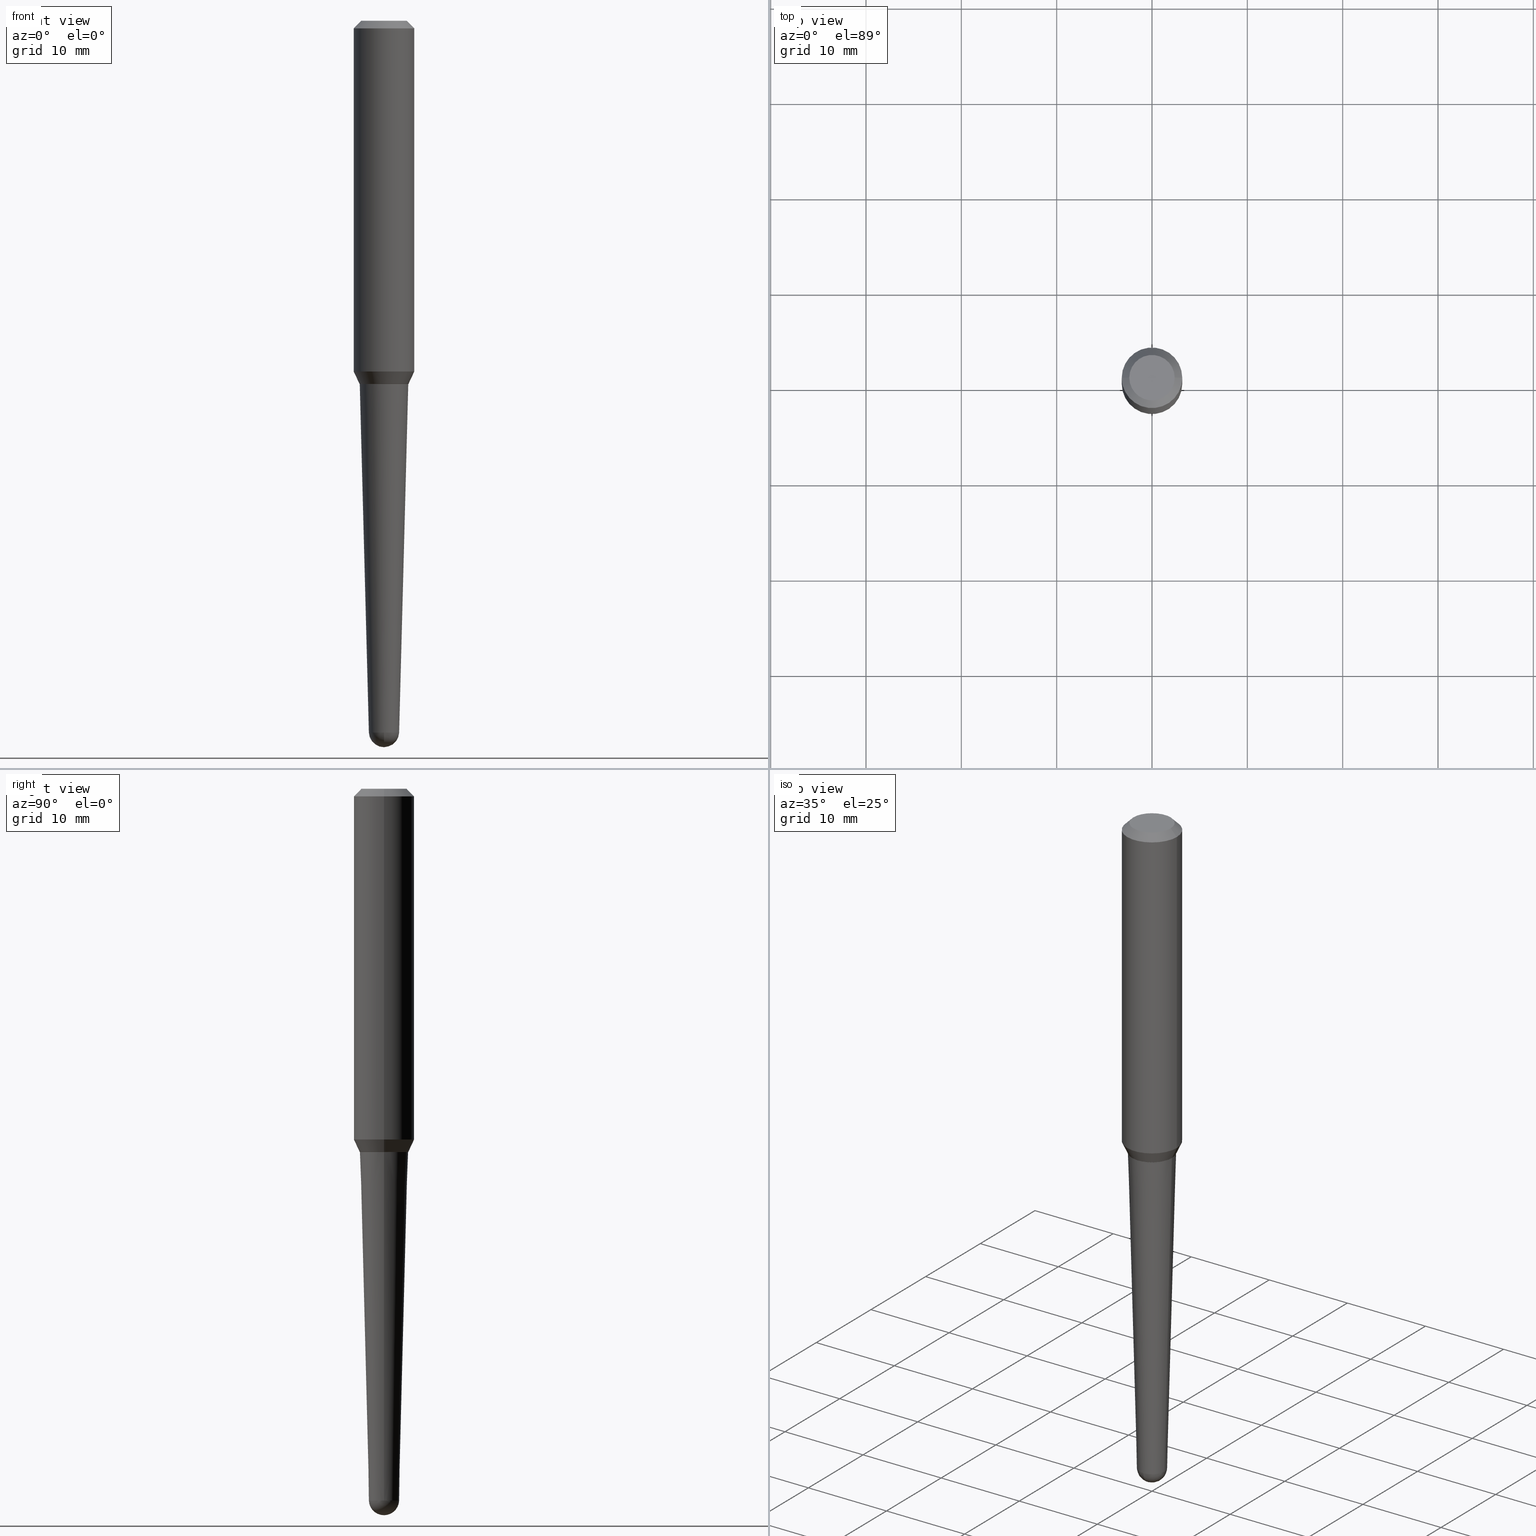
[diagram: canonical four-view strip — front | top / right | iso, engineering-drawing reading convention]
A machine part, canonical four-view strip (front | top / right | iso — engineering-drawing reading convention). The complete STEP part file that produces these views, byte-faithful:
ISO-10303-21;
HEADER;
FILE_DESCRIPTION (( 'STEP AP203' ),
    '1' );
FILE_NAME ('32471.STEP',
    '2024-03-04T15:25:41',
    ( '' ),
    ( '' ),
    'SwSTEP 2.0',
    'SolidWorks 2023',
    '' );
FILE_SCHEMA (( 'CONFIG_CONTROL_DESIGN' ));
ENDSEC;

DATA;
#1 = ORIENTED_EDGE ( 'NONE', *, *, #314, .F. ) ;
#2 = DIRECTION ( 'NONE',  ( -1.000000000000000000, 6.982962677686265922E-15, -4.883557194083112340E-29 ) ) ;
#3 = EDGE_CURVE ( 'NONE', #26, #160, #276, .T. ) ;
#4 = VECTOR ( 'NONE', #8, 39.37007874015748143 ) ;
#5 = CARTESIAN_POINT ( 'NONE',  ( 3.666980474874612654E-29, -5.235476267595295884E-15, -1.499500000000000055 ) ) ;
#6 = ORIENTED_EDGE ( 'NONE', *, *, #387, .T. ) ;
#7 = DIRECTION ( 'NONE',  ( 1.000000000000000000, -6.982962677686266711E-15, 4.852736867747361723E-29 ) ) ;
#8 = DIRECTION ( 'NONE',  ( 0.7071067811864750752, -2.468850131081498176E-15, 0.7071067811866199593 ) ) ;
#9 = DIRECTION ( 'NONE',  ( 1.000000000000000000, -6.982962677686277755E-15, 0.000000000000000000 ) ) ;
#10 = ADVANCED_BREP_SHAPE_REPRESENTATION ( '32471', ( #323, #168, #287 ), #134 ) ;
#11 = EDGE_CURVE ( 'NONE', #128, #308, #189, .T. ) ;
#12 = CARTESIAN_POINT ( 'NONE',  ( 0.1011636867863856259, -5.941898516761770205E-15, -1.499500000000000055 ) ) ;
#13 = ORIENTED_EDGE ( 'NONE', *, *, #101, .F. ) ;
#14 = AXIS2_PLACEMENT_3D ( 'NONE', #288, #2, #326 ) ;
#15 = CARTESIAN_POINT ( 'NONE',  ( -0.06247858281097278671, -9.818001671690315419E-15, -2.939136059269242374 ) ) ;
#16 = VERTEX_POINT ( 'NONE', #432 ) ;
#17 = CARTESIAN_POINT ( 'NONE',  ( 3.668203209277704335E-29, -5.237222008264717388E-15, -1.499999999999999778 ) ) ;
#18 = EDGE_LOOP ( 'NONE', ( #290, #233, #330, #157 ) ) ;
#19 = ADVANCED_FACE ( 'NONE', ( #241 ), #325, .T. ) ;
#20 = CARTESIAN_POINT ( 'NONE',  ( 7.187565550076840817E-29, -1.026193870325954003E-14, -2.939136059269242374 ) ) ;
#21 = ORIENTED_EDGE ( 'NONE', *, *, #145, .T. ) ;
#22 = EDGE_CURVE ( 'NONE', #416, #427, #38, .T. ) ;
#23 =( NAMED_UNIT ( * ) PLANE_ANGLE_UNIT ( ) SI_UNIT ( $, .RADIAN. ) );
#24 = ORIENTED_EDGE ( 'NONE', *, *, #267, .F. ) ;
#25 = LENGTH_MEASURE_WITH_UNIT ( LENGTH_MEASURE( 0.02539999999999999897 ), #125 );
#26 = VERTEX_POINT ( 'NONE', #319 ) ;
#27 = DIMENSIONAL_EXPONENTS ( 1.000000000000000000, 0.000000000000000000, 0.000000000000000000, 0.000000000000000000, 0.000000000000000000, 0.000000000000000000, 0.000000000000000000 ) ;
#28 = AXIS2_PLACEMENT_3D ( 'NONE', #116, #363, #9 ) ;
#29 = CC_DESIGN_APPROVAL ( #414, ( #351 ) ) ;
#30 = CALENDAR_DATE ( 2024, 4, 3 ) ;
#31 = ADVANCED_FACE ( 'NONE', ( #209 ), #70, .T. ) ;
#32 = CARTESIAN_POINT ( 'NONE',  ( 0.1250000000000001665, -5.929872066628403637E-15, -1.448382861353968432 ) ) ;
#33 = ADVANCED_FACE ( 'NONE', ( #174 ), #172, .T. ) ;
#34 = CARTESIAN_POINT ( 'NONE',  ( 3.666980474874612654E-29, -5.235476267595295884E-15, -1.499500000000000055 ) ) ;
#35 = CIRCLE ( 'NONE', #52, 0.1250000000000001665 ) ;
#36 = LOCAL_TIME ( 10, 25, 41.00000000000000000, #106 ) ;
#37 = COORDINATED_UNIVERSAL_TIME_OFFSET ( 5, 0, .BEHIND. ) ;
#38 = LINE ( 'NONE', #76, #114 ) ;
#39 = PRODUCT_DEFINITION ( 'UNKNOWN', '', #351, #249 ) ;
#40 = DATE_AND_TIME ( #30, #150 ) ;
#41 = DIRECTION ( 'NONE',  ( -1.000000000000000000, 6.982962677686265922E-15, -4.876176775795935793E-29 ) ) ;
#42 = ORIENTED_EDGE ( 'NONE', *, *, #266, .T. ) ;
#43 = ADVANCED_FACE ( 'NONE', ( #207 ), #402, .T. ) ;
#44 = CARTESIAN_POINT ( 'NONE',  ( 3.666980474874612654E-29, -5.235476267595295884E-15, -1.499500000000000055 ) ) ;
#45 = ORIENTED_EDGE ( 'NONE', *, *, #461, .F. ) ;
#46 = DIRECTION ( 'NONE',  ( -2.445468806185136877E-29, 3.491481338843145188E-15, 1.000000000000000000 ) ) ;
#47 = CONICAL_SURFACE ( 'NONE', #182, 0.1250000000000000278, 0.7853981633974514986 ) ;
#48 = DIRECTION ( 'NONE',  ( -2.445468806185136597E-29, 3.491481338843145583E-15, 1.000000000000000000 ) ) ;
#49 = ORIENTED_EDGE ( 'NONE', *, *, #300, .T. ) ;
#50 = DIRECTION ( 'NONE',  ( -2.445468806185136597E-29, 3.491481338843145583E-15, 1.000000000000000000 ) ) ;
#51 = CARTESIAN_POINT ( 'NONE',  ( 0.1006636867863858198, -5.940152776092349491E-15, -1.499999999999999778 ) ) ;
#52 = AXIS2_PLACEMENT_3D ( 'NONE', #186, #50, #221 ) ;
#53 = CARTESIAN_POINT ( 'NONE',  ( -0.1011636867863856259, -4.516665039907533070E-15, -1.499500000000000055 ) ) ;
#54 = ORIENTED_EDGE ( 'NONE', *, *, #303, .T. ) ;
#55 = AXIS2_PLACEMENT_3D ( 'NONE', #404, #446, #122 ) ;
#56 = CARTESIAN_POINT ( 'NONE',  ( 7.642090019328562375E-31, -1.091087918388484597E-16, -0.03125000000000004857 ) ) ;
#57 = ORIENTED_EDGE ( 'NONE', *, *, #369, .F. ) ;
#58 = PERSON_AND_ORGANIZATION ( #97, #318 ) ;
#59 = ORIENTED_EDGE ( 'NONE', *, *, #314, .T. ) ;
#60 = FACE_OUTER_BOUND ( 'NONE', #253, .T. ) ;
#61 = VERTEX_POINT ( 'NONE', #137 ) ;
#62 = AXIS2_PLACEMENT_3D ( 'NONE', #393, #78, #144 ) ;
#63 = ORIENTED_EDGE ( 'NONE', *, *, #202, .T. ) ;
#64 = ADVANCED_FACE ( 'NONE', ( #283 ), #380, .T. ) ;
#65 = DIRECTION ( 'NONE',  ( -2.445468806185136597E-29, 3.491481338843145583E-15, 1.000000000000000000 ) ) ;
#66 = VECTOR ( 'NONE', #250, 39.37007874015748854 ) ;
#67 = PERSON_AND_ORGANIZATION ( #97, #318 ) ;
#68 = CARTESIAN_POINT ( 'NONE',  ( 7.187565550076840817E-29, -1.026193870325954003E-14, -2.939136059269242374 ) ) ;
#69 = SECURITY_CLASSIFICATION_LEVEL ( 'unclassified' ) ;
#70 = CYLINDRICAL_SURFACE ( 'NONE', #219, 0.1250000000000001110 ) ;
#71 = DIRECTION ( 'NONE',  ( 2.445468806185136597E-29, -3.491481338843145583E-15, -1.000000000000000000 ) ) ;
#72 = AXIS2_PLACEMENT_3D ( 'NONE', #423, #382, #41 ) ;
#73 = CONICAL_SURFACE ( 'NONE', #381, 0.06247858281097278671, 0.02617993877991489637 ) ;
#74 = CALENDAR_DATE ( 2024, 4, 3 ) ;
#75 = EDGE_CURVE ( 'NONE', #165, #226, #278, .T. ) ;
#76 = CARTESIAN_POINT ( 'NONE',  ( -0.1250000000000001110, 8.881784197001279934E-16, 5.931196827434234637E-16 ) ) ;
#77 = ADVANCED_FACE ( 'NONE', ( #139 ), #322, .T. ) ;
#78 = DIRECTION ( 'NONE',  ( 2.438088387897960049E-29, -3.491481338843145188E-15, -1.000000000000000000 ) ) ;
#79 = CARTESIAN_POINT ( 'NONE',  ( -1.450455682483482035E-44, 2.070866303999251778E-30, 5.931196827434296760E-16 ) ) ;
#80 = ORIENTED_EDGE ( 'NONE', *, *, #185, .T. ) ;
#81 = CIRCLE ( 'NONE', #452, 0.06249999999999984041 ) ;
#82 = VECTOR ( 'NONE', #374, 39.37007874015748143 ) ;
#83 = DIRECTION ( 'NONE',  ( 1.000000000000000000, -6.982962677686277755E-15, 0.000000000000000000 ) ) ;
#84 = CARTESIAN_POINT ( 'NONE',  ( 3.666980474874612654E-29, -5.235476267595295884E-15, -1.499500000000000055 ) ) ;
#85 = DIRECTION ( 'NONE',  ( -2.445468806185136597E-29, 3.491481338843145583E-15, 1.000000000000000000 ) ) ;
#86 = CIRCLE ( 'NONE', #345, 0.09374999999999956979 ) ;
#87 = FACE_OUTER_BOUND ( 'NONE', #355, .T. ) ;
#88 = ORIENTED_EDGE ( 'NONE', *, *, #365, .T. ) ;
#89 = EDGE_CURVE ( 'NONE', #119, #165, #81, .T. ) ;
#90 = VERTEX_POINT ( 'NONE', #32 ) ;
#91 = DIRECTION ( 'NONE',  ( 6.982962677686265922E-15, 1.000000000000000000, 0.000000000000000000 ) ) ;
#92 = ORIENTED_EDGE ( 'NONE', *, *, #117, .F. ) ;
#93 = FACE_OUTER_BOUND ( 'NONE', #132, .T. ) ;
#94 = EDGE_LOOP ( 'NONE', ( #21, #54, #184, #441 ) ) ;
#95 = AXIS2_PLACEMENT_3D ( 'NONE', #84, #85, #148 ) ;
#96 = APPROVAL_PERSON_ORGANIZATION ( #109, #275, #347 ) ;
#97 = PERSON ( 'UNSPECIFIED', 'UNSPECIFIED', 'UNSPECIFIED', ('UNSPECIFIED'), ('UNSPECIFIED'), ('UNSPECIFIED') ) ;
#98 = DATE_AND_TIME ( #74, #224 ) ;
#99 = ORIENTED_EDGE ( 'NONE', *, *, #3, .T. ) ;
#100 = APPROVAL_STATUS ( 'not_yet_approved' ) ;
#101 = EDGE_CURVE ( 'NONE', #90, #61, #176, .T. ) ;
#102 = DIRECTION ( 'NONE',  ( -2.445468806185136597E-29, 3.491481338843145583E-15, 1.000000000000000000 ) ) ;
#103 = APPLICATION_PROTOCOL_DEFINITION ( 'international standard', 'config_control_design', 1994, #218 ) ;
#104 = APPROVAL ( #244, 'UNSPECIFIED' ) ;
#105 = DIRECTION ( 'NONE',  ( 1.000000000000000000, -6.982962677686277755E-15, 0.000000000000000000 ) ) ;
#106 = COORDINATED_UNIVERSAL_TIME_OFFSET ( 5, 0, .BEHIND. ) ;
#107 = CIRCLE ( 'NONE', #28, 0.06247858281097278671 ) ;
#108 = DIRECTION ( 'NONE',  ( -2.445468806185136597E-29, 3.491481338843145583E-15, 1.000000000000000000 ) ) ;
#109 = PERSON_AND_ORGANIZATION ( #97, #318 ) ;
#110 = DIRECTION ( 'NONE',  ( 1.000000000000000000, -6.982962677686265133E-15, 0.000000000000000000 ) ) ;
#111 = LINE ( 'NONE', #222, #411 ) ;
#112 = LINE ( 'NONE', #12, #286 ) ;
#113 = EDGE_LOOP ( 'NONE', ( #152, #59, #359, #123, #228 ) ) ;
#114 = VECTOR ( 'NONE', #216, 39.37007874015748143 ) ;
#115 = APPROVAL_PERSON_ORGANIZATION ( #170, #414, #175 ) ;
#116 = CARTESIAN_POINT ( 'NONE',  ( 7.187565550076840817E-29, -1.026193870325954003E-14, -2.939136059269242374 ) ) ;
#117 = EDGE_CURVE ( 'NONE', #337, #160, #197, .T. ) ;
#118 = DIRECTION ( 'NONE',  ( 2.445468806185136597E-29, -3.491481338843145583E-15, -1.000000000000000000 ) ) ;
#119 = VERTEX_POINT ( 'NONE', #456 ) ;
#120 = DIRECTION ( 'NONE',  ( -2.445468806185136597E-29, 3.491481338843145583E-15, 1.000000000000000000 ) ) ;
#121 = EDGE_LOOP ( 'NONE', ( #80, #364, #451, #13 ) ) ;
#122 = DIRECTION ( 'NONE',  ( 1.000000000000000000, -6.982962677686265133E-15, 0.000000000000000000 ) ) ;
#123 = ORIENTED_EDGE ( 'NONE', *, *, #3, .F. ) ;
#124 = CIRCLE ( 'NONE', #397, 0.1250000000000000278 ) ;
#125 =( LENGTH_UNIT ( ) NAMED_UNIT ( * ) SI_UNIT ( $, .METRE. ) );
#126 = ORIENTED_EDGE ( 'NONE', *, *, #282, .T. ) ;
#127 = FACE_OUTER_BOUND ( 'NONE', #140, .T. ) ;
#128 = VERTEX_POINT ( 'NONE', #135 ) ;
#129 = PLANE ( 'NONE',  #332 ) ;
#130 = CIRCLE ( 'NONE', #55, 0.1006636867863858198 ) ;
#131 = EDGE_CURVE ( 'NONE', #160, #337, #436, .T. ) ;
#132 = EDGE_LOOP ( 'NONE', ( #1, #339, #299, #99, #92 ) ) ;
#133 = DATE_AND_TIME ( #458, #238 ) ;
#134 =( GEOMETRIC_REPRESENTATION_CONTEXT ( 3 ) GLOBAL_UNCERTAINTY_ASSIGNED_CONTEXT ( ( #361 ) ) GLOBAL_UNIT_ASSIGNED_CONTEXT ( ( #448, #23, #201 ) ) REPRESENTATION_CONTEXT ( 'NONE', 'WORKASPACE' ) );
#135 = CARTESIAN_POINT ( 'NONE',  ( 0.1011636867863856259, -5.941898516761770205E-15, -1.499500000000000055 ) ) ;
#136 = CALENDAR_DATE ( 2024, 4, 3 ) ;
#137 = CARTESIAN_POINT ( 'NONE',  ( 0.1250000000000000278, -9.819791265496320450E-16, -0.03125000000000004857 ) ) ;
#138 = DATE_AND_TIME ( #460, #36 ) ;
#139 = FACE_OUTER_BOUND ( 'NONE', #18, .T. ) ;
#140 = EDGE_LOOP ( 'NONE', ( #265, #188, #49, #24 ) ) ;
#141 = CIRCLE ( 'NONE', #211, 0.1250000000000000278 ) ;
#142 = DIRECTION ( 'NONE',  ( -2.445468806185136597E-29, 3.491481338843145583E-15, 1.000000000000000000 ) ) ;
#143 = ORIENTED_EDGE ( 'NONE', *, *, #89, .T. ) ;
#144 = DIRECTION ( 'NONE',  ( -1.000000000000000000, 6.982962677686265922E-15, -4.876176775795935793E-29 ) ) ;
#145 = EDGE_CURVE ( 'NONE', #434, #178, #257, .T. ) ;
#146 = LINE ( 'NONE', #400, #389 ) ;
#147 = ADVANCED_FACE ( 'NONE', ( #291 ), #254, .F. ) ;
#148 = DIRECTION ( 'NONE',  ( 1.000000000000000000, -6.982962677686264344E-15, 0.000000000000000000 ) ) ;
#149 = AXIS2_PLACEMENT_3D ( 'NONE', #179, #459, #316 ) ;
#150 = LOCAL_TIME ( 10, 25, 41.00000000000000000, #177 ) ;
#151 = CARTESIAN_POINT ( 'NONE',  ( 7.642090019328562375E-31, -1.091087918388484597E-16, -0.03125000000000004857 ) ) ;
#152 = ORIENTED_EDGE ( 'NONE', *, *, #75, .T. ) ;
#153 = CARTESIAN_POINT ( 'NONE',  ( 7.187565550076840817E-29, -1.026193870325954003E-14, -2.939136059269242374 ) ) ;
#154 = EDGE_LOOP ( 'NONE', ( #371, #368, #163, #334 ) ) ;
#155 = ADVANCED_FACE ( 'NONE', ( #240 ), #213, .F. ) ;
#156 = DIRECTION ( 'NONE',  ( 1.000000000000000000, -6.982962677686265133E-15, 0.000000000000000000 ) ) ;
#157 = ORIENTED_EDGE ( 'NONE', *, *, #75, .F. ) ;
#158 = AXIS2_PLACEMENT_3D ( 'NONE', #34, #354, #349 ) ;
#159 = CARTESIAN_POINT ( 'NONE',  ( 0.000000000000000000, 0.000000000000000000, 0.000000000000000000 ) ) ;
#160 = VERTEX_POINT ( 'NONE', #392 ) ;
#161 = CONICAL_SURFACE ( 'NONE', #258, 0.1006636867863858198, 0.7853981633973459164 ) ;
#162 = DIRECTION ( 'NONE',  ( 1.000000000000000000, -6.982962677686265922E-15, 4.885088446865703771E-29 ) ) ;
#163 = ORIENTED_EDGE ( 'NONE', *, *, #215, .T. ) ;
#164 = DIRECTION ( 'NONE',  ( -7.105427357601000281E-15, -1.000000000000000000, 0.000000000000000000 ) ) ;
#165 = VERTEX_POINT ( 'NONE', #366 ) ;
#166 = EDGE_CURVE ( 'NONE', #416, #90, #317, .T. ) ;
#167 = DIRECTION ( 'NONE',  ( 1.000000000000000000, 0.000000000000000000, 0.000000000000000000 ) ) ;
#168 = MANIFOLD_SOLID_BREP ( 'Body-Move/Copy2[2]', #340 ) ;
#169 = APPLICATION_CONTEXT ( 'configuration controlled 3d designs of mechanical parts and assemblies' ) ;
#170 = PERSON_AND_ORGANIZATION ( #97, #318 ) ;
#171 = CARTESIAN_POINT ( 'NONE',  ( -1.450455682483482035E-44, 2.070866303999251778E-30, 5.931196827434296760E-16 ) ) ;
#172 = CONICAL_SURFACE ( 'NONE', #231, 0.1250000000000000278, 0.7853981633974514986 ) ;
#173 = SECURITY_CLASSIFICATION ( '', '', #69 ) ;
#174 = FACE_OUTER_BOUND ( 'NONE', #154, .T. ) ;
#175 = APPROVAL_ROLE ( '' ) ;
#176 = LINE ( 'NONE', #428, #425 ) ;
#177 = COORDINATED_UNIVERSAL_TIME_OFFSET ( 5, 0, .BEHIND. ) ;
#178 = VERTEX_POINT ( 'NONE', #394 ) ;
#179 = CARTESIAN_POINT ( 'NONE',  ( 7.187565550076840817E-29, -1.026193870325954003E-14, -2.939136059269242374 ) ) ;
#180 = CIRCLE ( 'NONE', #444, 0.1011636867863856259 ) ;
#181 = CARTESIAN_POINT ( 'NONE',  ( 3.668203209277704895E-29, -5.237222008264718177E-15, -1.500000000000000222 ) ) ;
#182 = AXIS2_PLACEMENT_3D ( 'NONE', #56, #118, #327 ) ;
#183 = CARTESIAN_POINT ( 'NONE',  ( -5.433005188967878147E-45, 7.756891514274027489E-31, 2.221662028657488629E-16 ) ) ;
#184 = ORIENTED_EDGE ( 'NONE', *, *, #11, .F. ) ;
#185 = EDGE_CURVE ( 'NONE', #90, #416, #35, .T. ) ;
#186 = CARTESIAN_POINT ( 'NONE',  ( 3.541975106854301275E-29, -5.057001731917619509E-15, -1.448382861353968432 ) ) ;
#187 = DIRECTION ( 'NONE',  ( 1.000000000000000000, -6.982962677686264344E-15, 0.000000000000000000 ) ) ;
#188 = ORIENTED_EDGE ( 'NONE', *, *, #461, .T. ) ;
#189 = CIRCLE ( 'NONE', #158, 0.1011636867863856259 ) ;
#190 = CIRCLE ( 'NONE', #437, 0.06247858281097278671 ) ;
#191 = CARTESIAN_POINT ( 'NONE',  ( 7.187565550076840817E-29, -1.026193870325954003E-14, -2.939136059269242374 ) ) ;
#192 = ORIENTED_EDGE ( 'NONE', *, *, #202, .F. ) ;
#193 = DIRECTION ( 'NONE',  ( -0.4226182617406875619, 6.167240084480771347E-15, 0.9063077870366553768 ) ) ;
#194 = VERTEX_POINT ( 'NONE', #298 ) ;
#195 = DIRECTION ( 'NONE',  ( 0.000000000000000000, 0.000000000000000000, 1.000000000000000000 ) ) ;
#196 = ORIENTED_EDGE ( 'NONE', *, *, #267, .T. ) ;
#197 = CIRCLE ( 'NONE', #457, 0.1001636867863858471 ) ;
#198 = DIRECTION ( 'NONE',  ( 1.000000000000000000, -6.982962677686265922E-15, 4.876176775795935793E-29 ) ) ;
#199 = ORIENTED_EDGE ( 'NONE', *, *, #454, .F. ) ;
#200 = ADVANCED_FACE ( 'NONE', ( #87 ), #294, .T. ) ;
#201 =( NAMED_UNIT ( * ) SI_UNIT ( $, .STERADIAN. ) SOLID_ANGLE_UNIT ( ) );
#202 = EDGE_CURVE ( 'NONE', #308, #416, #217, .T. ) ;
#203 = PERSON_AND_ORGANIZATION_ROLE ( 'design_supplier' ) ;
#204 = EDGE_CURVE ( 'NONE', #194, #427, #111, .T. ) ;
#205 = CLOSED_SHELL ( 'NONE', ( #43, #77, #348, #353, #155 ) ) ;
#206 = CIRCLE ( 'NONE', #426, 0.09374999999999956979 ) ;
#207 = FACE_OUTER_BOUND ( 'NONE', #113, .T. ) ;
#208 = DATE_TIME_ROLE ( 'classification_date' ) ;
#209 = FACE_OUTER_BOUND ( 'NONE', #121, .T. ) ;
#210 = DATE_AND_TIME ( #136, #373 ) ;
#211 = AXIS2_PLACEMENT_3D ( 'NONE', #151, #435, #260 ) ;
#212 = DIRECTION ( 'NONE',  ( -2.445468806185136597E-29, 3.491481338843145583E-15, 1.000000000000000000 ) ) ;
#213 = PLANE ( 'NONE',  #72 ) ;
#214 = DIRECTION ( 'NONE',  ( 1.000000000000000000, -6.982962677686265133E-15, 0.000000000000000000 ) ) ;
#215 = EDGE_CURVE ( 'NONE', #61, #427, #141, .T. ) ;
#216 = DIRECTION ( 'NONE',  ( -2.445468806185136877E-29, 3.491481338843145188E-15, 1.000000000000000000 ) ) ;
#217 = LINE ( 'NONE', #329, #264 ) ;
#218 = APPLICATION_CONTEXT ( 'configuration controlled 3d designs of mechanical parts and assemblies' ) ;
#219 = AXIS2_PLACEMENT_3D ( 'NONE', #171, #102, #7 ) ;
#220 = FACE_OUTER_BOUND ( 'NONE', #405, .T. ) ;
#221 = DIRECTION ( 'NONE',  ( 1.000000000000000000, -6.982962677686269077E-15, 0.000000000000000000 ) ) ;
#222 = CARTESIAN_POINT ( 'NONE',  ( -0.1250000000000000278, 7.637615428719351256E-16, -0.03125000000000004857 ) ) ;
#223 = AXIS2_PLACEMENT_3D ( 'NONE', #79, #48, #433 ) ;
#224 = LOCAL_TIME ( 10, 25, 41.00000000000000000, #277 ) ;
#225 = DIRECTION ( 'NONE',  ( -2.445468806185136597E-29, 3.491481338843145583E-15, 1.000000000000000000 ) ) ;
#226 = VERTEX_POINT ( 'NONE', #328 ) ;
#227 = CC_DESIGN_PERSON_AND_ORGANIZATION_ASSIGNMENT ( #418, #391, ( #39 ) ) ;
#228 = ORIENTED_EDGE ( 'NONE', *, *, #335, .T. ) ;
#229 = CARTESIAN_POINT ( 'NONE',  ( 7.520286344533223702E-29, -9.774021755687468506E-15, -2.937500000000000000 ) ) ;
#230 = ORIENTED_EDGE ( 'NONE', *, *, #204, .T. ) ;
#231 = AXIS2_PLACEMENT_3D ( 'NONE', #383, #71, #356 ) ;
#232 = CARTESIAN_POINT ( 'NONE',  ( 0.09374999999999956979, -8.049213644256838428E-16, 2.221662028657539905E-16 ) ) ;
#233 = ORIENTED_EDGE ( 'NONE', *, *, #369, .T. ) ;
#234 = AXIS2_PLACEMENT_3D ( 'NONE', #191, #333, #398 ) ;
#235 = DIRECTION ( 'NONE',  ( -1.000000000000000000, 7.105427357601001070E-15, -4.926315508542082329E-29 ) ) ;
#236 = ADVANCED_FACE ( 'NONE', ( #358 ), #362, .T. ) ;
#237 = CARTESIAN_POINT ( 'NONE',  ( 7.642090019328562375E-31, -1.091087918388484597E-16, -0.03125000000000004857 ) ) ;
#238 = LOCAL_TIME ( 10, 25, 41.00000000000000000, #37 ) ;
#239 = PRODUCT_DEFINITION_SHAPE ( 'NONE', 'NONE',  #39 ) ;
#240 = FACE_OUTER_BOUND ( 'NONE', #307, .T. ) ;
#241 = FACE_OUTER_BOUND ( 'NONE', #324, .T. ) ;
#242 = PERSON_AND_ORGANIZATION ( #97, #318 ) ;
#243 = CARTESIAN_POINT ( 'NONE',  ( 0.06247858281097278671, -1.069822431518329472E-14, -2.939136059269242374 ) ) ;
#244 = APPROVAL_STATUS ( 'not_yet_approved' ) ;
#245 = CARTESIAN_POINT ( 'NONE',  ( 7.520286344533223702E-29, -9.774021755687468506E-15, -2.937500000000000000 ) ) ;
#246 = SHAPE_DEFINITION_REPRESENTATION ( #239, #10 ) ;
#247 = AXIS2_PLACEMENT_3D ( 'NONE', #181, #462, #284 ) ;
#248 = CC_DESIGN_APPROVAL ( #104, ( #39 ) ) ;
#249 = DESIGN_CONTEXT ( 'detailed design', #218, 'design' ) ;
#250 = DIRECTION ( 'NONE',  ( 0.02617694830787310745, 3.307492242340416220E-15, 0.9996573249755572599 ) ) ;
#251 = PERSON_AND_ORGANIZATION_ROLE ( 'design_owner' ) ;
#252 = EDGE_CURVE ( 'NONE', #16, #26, #107, .T. ) ;
#253 = EDGE_LOOP ( 'NONE', ( #431, #45 ) ) ;
#254 = PLANE ( 'NONE',  #62 ) ;
#255 = DIRECTION ( 'NONE',  ( -0.7071067811865497932, 2.468850131082280332E-15, -0.7071067811865452413 ) ) ;
#256 = DIRECTION ( 'NONE',  ( -0.02617694830787310745, 3.676283300035285798E-15, 0.9996573249755572599 ) ) ;
#257 = CIRCLE ( 'NONE', #271, 0.1006636867863858198 ) ;
#258 = AXIS2_PLACEMENT_3D ( 'NONE', #17, #310, #156 ) ;
#259 = FACE_OUTER_BOUND ( 'NONE', #367, .T. ) ;
#260 = DIRECTION ( 'NONE',  ( 1.000000000000000000, -6.982962677686267499E-15, 0.000000000000000000 ) ) ;
#261 = DIRECTION ( 'NONE',  ( -2.445468806185136597E-29, 3.491481338843145583E-15, 1.000000000000000000 ) ) ;
#262 = ORIENTED_EDGE ( 'NONE', *, *, #22, .F. ) ;
#263 = CC_DESIGN_DATE_AND_TIME_ASSIGNMENT ( #133, #386, ( #39 ) ) ;
#264 = VECTOR ( 'NONE', #193, 39.37007874015748854 ) ;
#265 = ORIENTED_EDGE ( 'NONE', *, *, #303, .F. ) ;
#266 = EDGE_CURVE ( 'NONE', #128, #90, #112, .T. ) ;
#267 = EDGE_CURVE ( 'NONE', #308, #128, #180, .T. ) ;
#268 = DIRECTION ( 'NONE',  ( -2.445468806185136597E-29, 3.491481338843145583E-15, 1.000000000000000000 ) ) ;
#269 = ORIENTED_EDGE ( 'NONE', *, *, #117, .T. ) ;
#270 = EDGE_LOOP ( 'NONE', ( #126, #88 ) ) ;
#271 = AXIS2_PLACEMENT_3D ( 'NONE', #424, #108, #110 ) ;
#272 = CARTESIAN_POINT ( 'NONE',  ( 0.1250000000000000278, -9.666710415602901515E-16, -0.03125000000000004857 ) ) ;
#273 = APPLICATION_PROTOCOL_DEFINITION ( 'international standard', 'config_control_design', 1994, #169 ) ;
#274 = PERSON_AND_ORGANIZATION ( #97, #318 ) ;
#275 = APPROVAL ( #420, 'UNSPECIFIED' ) ;
#276 = LINE ( 'NONE', #243, #66 ) ;
#277 = COORDINATED_UNIVERSAL_TIME_OFFSET ( 5, 0, .BEHIND. ) ;
#278 = CIRCLE ( 'NONE', #417, 0.06247858281097278671 ) ;
#279 = VECTOR ( 'NONE', #256, 39.37007874015748854 ) ;
#280 = DIRECTION ( 'NONE',  ( -2.445468806185136597E-29, 3.491481338843145583E-15, 1.000000000000000000 ) ) ;
#281 = PERSON_AND_ORGANIZATION_ROLE ( 'classification_officer' ) ;
#282 = EDGE_CURVE ( 'NONE', #194, #439, #86, .T. ) ;
#283 = FACE_OUTER_BOUND ( 'NONE', #94, .T. ) ;
#284 = DIRECTION ( 'NONE',  ( 1.000000000000000000, -6.982962677686267499E-15, 0.000000000000000000 ) ) ;
#285 = ADVANCED_FACE ( 'NONE', ( #259 ), #47, .T. ) ;
#286 = VECTOR ( 'NONE', #296, 39.37007874015748854 ) ;
#287 = AXIS2_PLACEMENT_3D ( 'NONE', #159, #195, #167 ) ;
#288 = CARTESIAN_POINT ( 'NONE',  ( 7.520286344533223702E-29, -9.774021755687468506E-15, -2.937500000000000000 ) ) ;
#289 = CARTESIAN_POINT ( 'NONE',  ( 3.541975106854301275E-29, -5.057001731917619509E-15, -1.448382861353968432 ) ) ;
#290 = ORIENTED_EDGE ( 'NONE', *, *, #89, .F. ) ;
#291 = FACE_OUTER_BOUND ( 'NONE', #270, .T. ) ;
#292 = LINE ( 'NONE', #15, #279 ) ;
#293 = LINE ( 'NONE', #51, #4 ) ;
#294 = CONICAL_SURFACE ( 'NONE', #95, 0.1011636867863856259, 0.4363323129985693383 ) ;
#295 = CIRCLE ( 'NONE', #234, 0.06247858281097278671 ) ;
#296 = DIRECTION ( 'NONE',  ( 0.4226182617406875619, 2.132291770428427212E-16, 0.9063077870366553768 ) ) ;
#297 = ORIENTED_EDGE ( 'NONE', *, *, #387, .F. ) ;
#298 = CARTESIAN_POINT ( 'NONE',  ( -0.09374999999999956979, 7.092071469525100823E-16, 2.221662028657441297E-16 ) ) ;
#299 = ORIENTED_EDGE ( 'NONE', *, *, #252, .T. ) ;
#300 = EDGE_CURVE ( 'NONE', #434, #128, #293, .T. ) ;
#301 = DIRECTION ( 'NONE',  ( -2.438088387897960049E-29, 3.491481338843145188E-15, 1.000000000000000000 ) ) ;
#302 = ORIENTED_EDGE ( 'NONE', *, *, #11, .T. ) ;
#303 = EDGE_CURVE ( 'NONE', #178, #308, #146, .T. ) ;
#304 = AXIS2_PLACEMENT_3D ( 'NONE', #421, #142, #214 ) ;
#305 = CC_DESIGN_SECURITY_CLASSIFICATION ( #173, ( #351 ) ) ;
#306 = CARTESIAN_POINT ( 'NONE',  ( 6.510796182454447228E-29, -1.166467080331167292E-15, -1.499999999999999778 ) ) ;
#307 = EDGE_LOOP ( 'NONE', ( #449, #269 ) ) ;
#308 = VERTEX_POINT ( 'NONE', #53 ) ;
#309 = DIRECTION ( 'NONE',  ( 1.000000000000000000, -6.982962677686267499E-15, 0.000000000000000000 ) ) ;
#310 = DIRECTION ( 'NONE',  ( -2.445468806185136597E-29, 3.491481338843145583E-15, 1.000000000000000000 ) ) ;
#311 = PRODUCT ( '32471', '32471', '', ( #415 ) ) ;
#312 = APPROVAL_ROLE ( '' ) ;
#313 = CC_DESIGN_DATE_AND_TIME_ASSIGNMENT ( #138, #208, ( #173 ) ) ;
#314 = EDGE_CURVE ( 'NONE', #226, #337, #292, .T. ) ;
#315 = COORDINATED_UNIVERSAL_TIME_OFFSET ( 5, 0, .BEHIND. ) ;
#316 = DIRECTION ( 'NONE',  ( 1.000000000000000000, -6.982962677686277755E-15, 0.000000000000000000 ) ) ;
#317 = CIRCLE ( 'NONE', #372, 0.1250000000000001665 ) ;
#318 = ORGANIZATION ( 'UNSPECIFIED', 'UNSPECIFIED', '' ) ;
#319 = CARTESIAN_POINT ( 'NONE',  ( 0.06247858281097278671, -8.317442804968401393E-15, -2.939136059269242374 ) ) ;
#320 = PERSON_AND_ORGANIZATION ( #97, #318 ) ;
#321 = CARTESIAN_POINT ( 'NONE',  ( 3.668203209277704895E-29, -5.237222008264718177E-15, -1.500000000000000222 ) ) ;
#322 = SPHERICAL_SURFACE ( 'NONE', #14, 0.06249999999999984041 ) ;
#323 = MANIFOLD_SOLID_BREP ( 'Body-Move/Copy2[1]', #205 ) ;
#324 = EDGE_LOOP ( 'NONE', ( #302, #63, #401, #408 ) ) ;
#325 = CONICAL_SURFACE ( 'NONE', #331, 0.1011636867863856259, 0.4363323129985693383 ) ;
#326 = DIRECTION ( 'NONE',  ( 6.982962677686265922E-15, 1.000000000000000000, 0.000000000000000000 ) ) ;
#327 = DIRECTION ( 'NONE',  ( -1.000000000000000000, 6.982962677686267499E-15, 0.000000000000000000 ) ) ;
#328 = CARTESIAN_POINT ( 'NONE',  ( -0.06247858281097278671, -7.171758939812435500E-15, -2.939136059269242374 ) ) ;
#329 = CARTESIAN_POINT ( 'NONE',  ( -0.1011636867863856259, -4.516665039907533070E-15, -1.499500000000000055 ) ) ;
#330 = ORIENTED_EDGE ( 'NONE', *, *, #343, .F. ) ;
#331 = AXIS2_PLACEMENT_3D ( 'NONE', #44, #385, #390 ) ;
#332 = AXIS2_PLACEMENT_3D ( 'NONE', #306, #301, #198 ) ;
#333 = DIRECTION ( 'NONE',  ( -2.445468806185136597E-29, 3.491481338843145583E-15, 1.000000000000000000 ) ) ;
#334 = ORIENTED_EDGE ( 'NONE', *, *, #204, .F. ) ;
#335 = EDGE_CURVE ( 'NONE', #26, #165, #295, .T. ) ;
#336 = CARTESIAN_POINT ( 'NONE',  ( -0.1250000000000001665, -4.168823312217493488E-15, -1.448382861353968432 ) ) ;
#337 = VERTEX_POINT ( 'NONE', #396 ) ;
#338 = CARTESIAN_POINT ( 'NONE',  ( 0.1006636867863858198, -5.940152776092349491E-15, -1.499999999999999778 ) ) ;
#339 = ORIENTED_EDGE ( 'NONE', *, *, #343, .T. ) ;
#340 = CLOSED_SHELL ( 'NONE', ( #33, #31, #19, #64, #429, #379, #200, #236, #285, #147 ) ) ;
#341 = DIRECTION ( 'NONE',  ( 1.000000000000000000, -6.982962677686277755E-15, 0.000000000000000000 ) ) ;
#342 = ORIENTED_EDGE ( 'NONE', *, *, #282, .F. ) ;
#343 = EDGE_CURVE ( 'NONE', #226, #16, #190, .T. ) ;
#344 = ORIENTED_EDGE ( 'NONE', *, *, #166, .T. ) ;
#345 = AXIS2_PLACEMENT_3D ( 'NONE', #183, #225, #438 ) ;
#346 = CC_DESIGN_PERSON_AND_ORGANIZATION_ASSIGNMENT ( #274, #281, ( #173 ) ) ;
#347 = APPROVAL_ROLE ( '' ) ;
#348 = ADVANCED_FACE ( 'NONE', ( #220 ), #378, .T. ) ;
#349 = DIRECTION ( 'NONE',  ( 1.000000000000000000, -6.982962677686264344E-15, 0.000000000000000000 ) ) ;
#350 = APPROVAL_DATE_TIME ( #98, #104 ) ;
#351 = PRODUCT_DEFINITION_FORMATION_WITH_SPECIFIED_SOURCE ( 'ANY', '', #311, .NOT_KNOWN. ) ;
#352 = DIRECTION ( 'NONE',  ( 1.000000000000000000, -6.982962677686267499E-15, 0.000000000000000000 ) ) ;
#353 = ADVANCED_FACE ( 'NONE', ( #93 ), #73, .T. ) ;
#354 = DIRECTION ( 'NONE',  ( -2.445468806185136597E-29, 3.491481338843145583E-15, 1.000000000000000000 ) ) ;
#355 = EDGE_LOOP ( 'NONE', ( #192, #196, #42, #395 ) ) ;
#356 = DIRECTION ( 'NONE',  ( -1.000000000000000000, 6.982962677686267499E-15, 0.000000000000000000 ) ) ;
#357 = CC_DESIGN_PERSON_AND_ORGANIZATION_ASSIGNMENT ( #242, #203, ( #351 ) ) ;
#358 = FACE_OUTER_BOUND ( 'NONE', #443, .T. ) ;
#359 = ORIENTED_EDGE ( 'NONE', *, *, #131, .F. ) ;
#360 = AXIS2_PLACEMENT_3D ( 'NONE', #407, #235, #164 ) ;
#361 = UNCERTAINTY_MEASURE_WITH_UNIT (LENGTH_MEASURE( 1.000000000000000082E-05 ), #448, 'distance_accuracy_value', 'NONE');
#362 = CYLINDRICAL_SURFACE ( 'NONE', #223, 0.1250000000000001110 ) ;
#363 = DIRECTION ( 'NONE',  ( -2.445468806185136597E-29, 3.491481338843145583E-15, 1.000000000000000000 ) ) ;
#364 = ORIENTED_EDGE ( 'NONE', *, *, #22, .T. ) ;
#365 = EDGE_CURVE ( 'NONE', #439, #194, #206, .T. ) ;
#366 = CARTESIAN_POINT ( 'NONE',  ( 4.362856119238250042E-16, 0.06247858281096245470, -2.939136059269242374 ) ) ;
#367 = EDGE_LOOP ( 'NONE', ( #199, #342, #230, #6 ) ) ;
#368 = ORIENTED_EDGE ( 'NONE', *, *, #454, .T. ) ;
#369 = EDGE_CURVE ( 'NONE', #119, #16, #445, .T. ) ;
#370 = CARTESIAN_POINT ( 'NONE',  ( -5.433005188967878147E-45, 7.756891514274027489E-31, 2.221662028657488629E-16 ) ) ;
#371 = ORIENTED_EDGE ( 'NONE', *, *, #365, .F. ) ;
#372 = AXIS2_PLACEMENT_3D ( 'NONE', #289, #440, #430 ) ;
#373 = LOCAL_TIME ( 10, 25, 41.00000000000000000, #315 ) ;
#374 = DIRECTION ( 'NONE',  ( 0.7071067811865497932, -7.319954787623263934E-15, -0.7071067811865452413 ) ) ;
#375 = ORIENTED_EDGE ( 'NONE', *, *, #335, .F. ) ;
#376 = CC_DESIGN_PERSON_AND_ORGANIZATION_ASSIGNMENT ( #58, #251, ( #311 ) ) ;
#377 = DIRECTION ( 'NONE',  ( -2.445468806185136597E-29, 3.491481338843145583E-15, 1.000000000000000000 ) ) ;
#378 = SPHERICAL_SURFACE ( 'NONE', #453, 0.06249999999999984041 ) ;
#379 = ADVANCED_FACE ( 'NONE', ( #127 ), #161, .T. ) ;
#380 = CONICAL_SURFACE ( 'NONE', #304, 0.1006636867863858198, 0.7853981633973459164 ) ;
#381 = AXIS2_PLACEMENT_3D ( 'NONE', #20, #268, #341 ) ;
#382 = DIRECTION ( 'NONE',  ( 2.438088387897960049E-29, -3.491481338843145188E-15, -1.000000000000000000 ) ) ;
#383 = CARTESIAN_POINT ( 'NONE',  ( 7.642090019328562375E-31, -1.091087918388484597E-16, -0.03125000000000004857 ) ) ;
#384 = PERSON_AND_ORGANIZATION_ROLE ( 'creator' ) ;
#385 = DIRECTION ( 'NONE',  ( -2.445468806185136597E-29, 3.491481338843145583E-15, 1.000000000000000000 ) ) ;
#386 = DATE_TIME_ROLE ( 'creation_date' ) ;
#387 = EDGE_CURVE ( 'NONE', #427, #61, #124, .T. ) ;
#388 = DIRECTION ( 'NONE',  ( 6.982962677686265922E-15, 1.000000000000000000, 0.000000000000000000 ) ) ;
#389 = VECTOR ( 'NONE', #399, 39.37007874015748143 ) ;
#390 = DIRECTION ( 'NONE',  ( 1.000000000000000000, -6.982962677686264344E-15, 0.000000000000000000 ) ) ;
#391 = PERSON_AND_ORGANIZATION_ROLE ( 'creator' ) ;
#392 = CARTESIAN_POINT ( 'NONE',  ( 0.1001636867863858471, -5.936661294753508061E-15, -1.500000000000000222 ) ) ;
#393 = CARTESIAN_POINT ( 'NONE',  ( -2.716502594483939074E-45, 3.878445757137013744E-31, 1.110831014328744314E-16 ) ) ;
#394 = CARTESIAN_POINT ( 'NONE',  ( -0.1006636867863858198, -4.519314267081643483E-15, -1.499999999999999778 ) ) ;
#395 = ORIENTED_EDGE ( 'NONE', *, *, #166, .F. ) ;
#396 = CARTESIAN_POINT ( 'NONE',  ( -0.1001636867863858471, -4.525516207934555582E-15, -1.500000000000000222 ) ) ;
#397 = AXIS2_PLACEMENT_3D ( 'NONE', #237, #65, #309 ) ;
#398 = DIRECTION ( 'NONE',  ( 1.000000000000000000, -6.982962677686277755E-15, 0.000000000000000000 ) ) ;
#399 = DIRECTION ( 'NONE',  ( -0.7071067811864750752, 7.493145998870092258E-15, 0.7071067811866199593 ) ) ;
#400 = CARTESIAN_POINT ( 'NONE',  ( -0.1006636867863858198, -4.521963494255753895E-15, -1.499999999999999778 ) ) ;
#401 = ORIENTED_EDGE ( 'NONE', *, *, #185, .F. ) ;
#402 = CONICAL_SURFACE ( 'NONE', #149, 0.06247858281097278671, 0.02617993877991489637 ) ;
#403 = APPROVAL_PERSON_ORGANIZATION ( #67, #104, #312 ) ;
#404 = CARTESIAN_POINT ( 'NONE',  ( 3.668203209277704335E-29, -5.237222008264717388E-15, -1.499999999999999778 ) ) ;
#405 = EDGE_LOOP ( 'NONE', ( #57, #143, #375, #410 ) ) ;
#406 = PRODUCT_RELATED_PRODUCT_CATEGORY ( 'detail', '', ( #311 ) ) ;
#407 = CARTESIAN_POINT ( 'NONE',  ( 7.520286344533223702E-29, -9.774021755687468506E-15, -2.937500000000000000 ) ) ;
#408 = ORIENTED_EDGE ( 'NONE', *, *, #266, .F. ) ;
#409 = LINE ( 'NONE', #272, #82 ) ;
#410 = ORIENTED_EDGE ( 'NONE', *, *, #252, .F. ) ;
#411 = VECTOR ( 'NONE', #255, 39.37007874015748143 ) ;
#412 = CC_DESIGN_APPROVAL ( #275, ( #173 ) ) ;
#413 = DIRECTION ( 'NONE',  ( -1.000000000000000000, 6.982962677686265922E-15, -4.883557194083112340E-29 ) ) ;
#414 = APPROVAL ( #100, 'UNSPECIFIED' ) ;
#415 = MECHANICAL_CONTEXT ( 'NONE', #169, 'mechanical' ) ;
#416 = VERTEX_POINT ( 'NONE', #336 ) ;
#417 = AXIS2_PLACEMENT_3D ( 'NONE', #68, #280, #105 ) ;
#418 = PERSON_AND_ORGANIZATION ( #97, #318 ) ;
#419 = DIRECTION ( 'NONE',  ( 1.000000000000000000, -6.982962677686265922E-15, 4.883557194083112340E-29 ) ) ;
#420 = APPROVAL_STATUS ( 'not_yet_approved' ) ;
#421 = CARTESIAN_POINT ( 'NONE',  ( 3.668203209277704335E-29, -5.237222008264717388E-15, -1.499999999999999778 ) ) ;
#422 = APPROVAL_DATE_TIME ( #40, #275 ) ;
#423 = CARTESIAN_POINT ( 'NONE',  ( 3.668203209277704895E-29, -5.237222008264718177E-15, -1.500000000000000222 ) ) ;
#424 = CARTESIAN_POINT ( 'NONE',  ( 3.668203209277704335E-29, -5.237222008264717388E-15, -1.499999999999999778 ) ) ;
#425 = VECTOR ( 'NONE', #46, 39.37007874015748143 ) ;
#426 = AXIS2_PLACEMENT_3D ( 'NONE', #370, #377, #162 ) ;
#427 = VERTEX_POINT ( 'NONE', #442 ) ;
#428 = CARTESIAN_POINT ( 'NONE',  ( 0.1250000000000001110, -8.728703347107820569E-16, 5.931196827434357896E-16 ) ) ;
#429 = ADVANCED_FACE ( 'NONE', ( #60 ), #129, .F. ) ;
#430 = DIRECTION ( 'NONE',  ( 1.000000000000000000, -6.982962677686269077E-15, 0.000000000000000000 ) ) ;
#431 = ORIENTED_EDGE ( 'NONE', *, *, #145, .F. ) ;
#432 = CARTESIAN_POINT ( 'NONE',  ( -4.439370315691499629E-16, -0.06247858281098250116, -2.939136059269242374 ) ) ;
#433 = DIRECTION ( 'NONE',  ( 1.000000000000000000, -6.982962677686266711E-15, 4.852736867747361723E-29 ) ) ;
#434 = VERTEX_POINT ( 'NONE', #338 ) ;
#435 = DIRECTION ( 'NONE',  ( -2.445468806185136597E-29, 3.491481338843145583E-15, 1.000000000000000000 ) ) ;
#436 = CIRCLE ( 'NONE', #247, 0.1001636867863858471 ) ;
#437 = AXIS2_PLACEMENT_3D ( 'NONE', #153, #120, #83 ) ;
#438 = DIRECTION ( 'NONE',  ( 1.000000000000000000, -6.982962677686265922E-15, 4.885088446865703771E-29 ) ) ;
#439 = VERTEX_POINT ( 'NONE', #232 ) ;
#440 = DIRECTION ( 'NONE',  ( -2.445468806185136597E-29, 3.491481338843145583E-15, 1.000000000000000000 ) ) ;
#441 = ORIENTED_EDGE ( 'NONE', *, *, #300, .F. ) ;
#442 = CARTESIAN_POINT ( 'NONE',  ( -0.1250000000000000278, -1.694876842178107692E-15, -0.03125000000000004857 ) ) ;
#443 = EDGE_LOOP ( 'NONE', ( #262, #344, #447, #297 ) ) ;
#444 = AXIS2_PLACEMENT_3D ( 'NONE', #5, #261, #187 ) ;
#445 = CIRCLE ( 'NONE', #360, 0.06249999999999984041 ) ;
#446 = DIRECTION ( 'NONE',  ( -2.445468806185136597E-29, 3.491481338843145583E-15, 1.000000000000000000 ) ) ;
#447 = ORIENTED_EDGE ( 'NONE', *, *, #101, .T. ) ;
#448 =( CONVERSION_BASED_UNIT ( 'INCH', #25 ) LENGTH_UNIT ( ) NAMED_UNIT ( #27 ) );
#449 = ORIENTED_EDGE ( 'NONE', *, *, #131, .T. ) ;
#450 = CC_DESIGN_PERSON_AND_ORGANIZATION_ASSIGNMENT ( #320, #384, ( #351 ) ) ;
#451 = ORIENTED_EDGE ( 'NONE', *, *, #215, .F. ) ;
#452 = AXIS2_PLACEMENT_3D ( 'NONE', #245, #419, #388 ) ;
#453 = AXIS2_PLACEMENT_3D ( 'NONE', #229, #413, #91 ) ;
#454 = EDGE_CURVE ( 'NONE', #439, #61, #409, .T. ) ;
#455 = APPROVAL_DATE_TIME ( #210, #414 ) ;
#456 = CARTESIAN_POINT ( 'NONE',  ( 7.675800539573479979E-29, -9.988412318117830445E-15, -2.999999999999999556 ) ) ;
#457 = AXIS2_PLACEMENT_3D ( 'NONE', #321, #212, #352 ) ;
#458 = CALENDAR_DATE ( 2024, 4, 3 ) ;
#459 = DIRECTION ( 'NONE',  ( -2.445468806185136597E-29, 3.491481338843145583E-15, 1.000000000000000000 ) ) ;
#460 = CALENDAR_DATE ( 2024, 4, 3 ) ;
#461 = EDGE_CURVE ( 'NONE', #178, #434, #130, .T. ) ;
#462 = DIRECTION ( 'NONE',  ( -2.445468806185136597E-29, 3.491481338843145583E-15, 1.000000000000000000 ) ) ;
ENDSEC;
END-ISO-10303-21;
